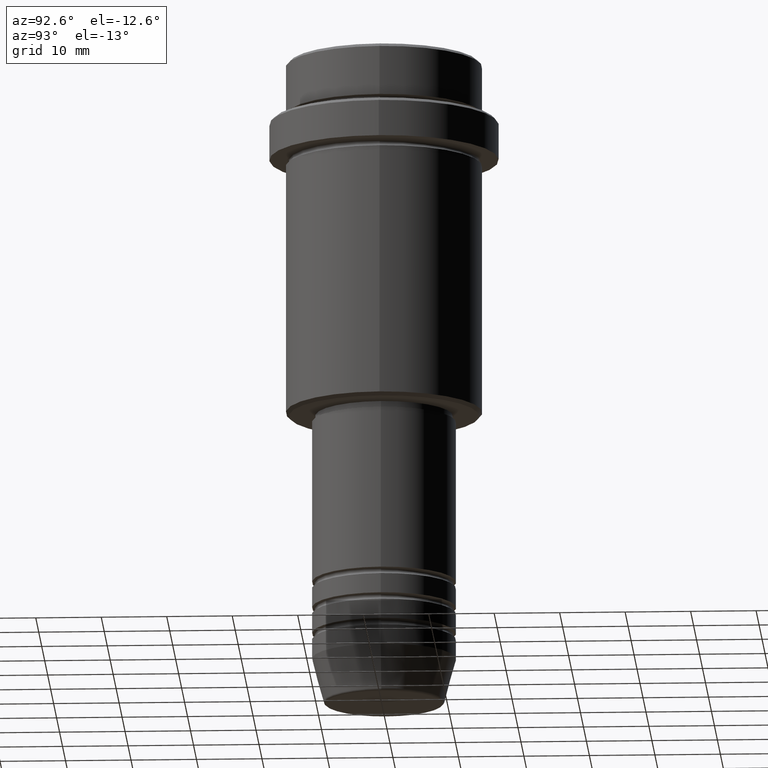
[diagram: clean part render]
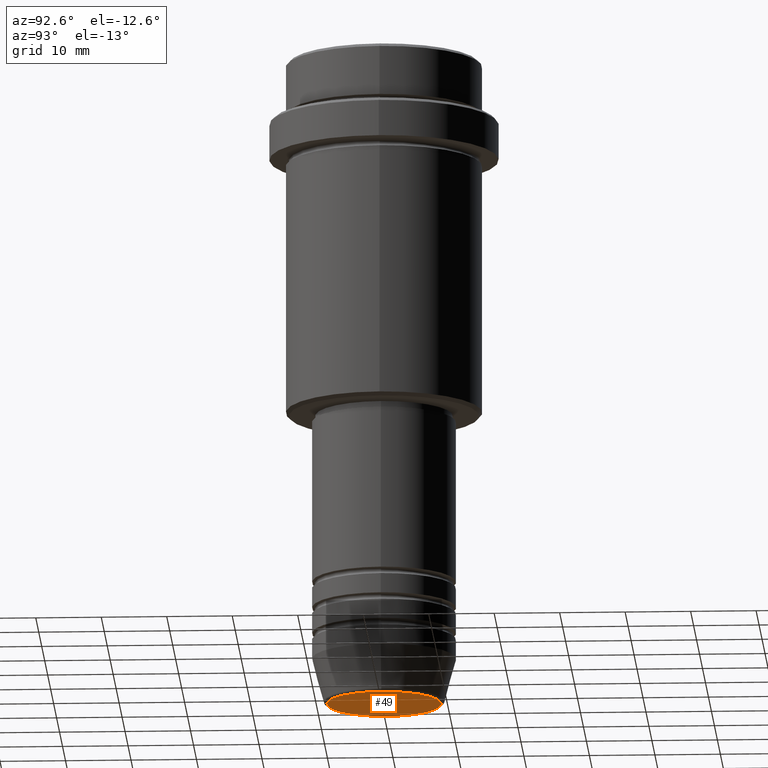
[diagram: same view with one face highlighted and labeled with its STEP entity id]
A machine part, auxiliary view. The second image highlights one B-rep face of the part: STEP entity #49.
In plain terms, the highlighted planar face has unit normal (0, -0, 1).
Its self-contained STEP definition (entity closure, byte-faithful):
#46 = VERTEX_POINT ( 'NONE', #663 ) ;
#49 = ADVANCED_FACE ( 'NONE', ( #656 ), #90, .F. ) ;
#90 = PLANE ( 'NONE',  #1188 ) ;
#153 = CARTESIAN_POINT ( 'NONE',  ( 8.740692158992652949, 0.000000000000000000, -100.0000000000000000 ) ) ;
#177 = VERTEX_POINT ( 'NONE', #153 ) ;
#220 = DIRECTION ( 'NONE',  ( 0.000000000000000000, 0.000000000000000000, -1.000000000000000000 ) ) ;
#227 = EDGE_LOOP ( 'NONE', ( #623, #1237 ) ) ;
#322 = DIRECTION ( 'NONE',  ( 0.000000000000000000, -0.000000000000000000, 1.000000000000000000 ) ) ;
#545 = CARTESIAN_POINT ( 'NONE',  ( 0.000000000000000000, 0.000000000000000000, -100.0000000000000000 ) ) ;
#549 = DIRECTION ( 'NONE',  ( 1.000000000000000000, 0.000000000000000000, 0.000000000000000000 ) ) ;
#605 = AXIS2_PLACEMENT_3D ( 'NONE', #545, #1084, #757 ) ;
#623 = ORIENTED_EDGE ( 'NONE', *, *, #664, .T. ) ;
#656 = FACE_OUTER_BOUND ( 'NONE', #227, .T. ) ;
#663 = CARTESIAN_POINT ( 'NONE',  ( -8.740692158992652949, 1.099999016768739259E-15, -100.0000000000000000 ) ) ;
#664 = EDGE_CURVE ( 'NONE', #177, #46, #1317, .T. ) ;
#675 = DIRECTION ( 'NONE',  ( 1.000000000000000000, 0.000000000000000000, 0.000000000000000000 ) ) ;
#713 = AXIS2_PLACEMENT_3D ( 'NONE', #1109, #220, #675 ) ;
#757 = DIRECTION ( 'NONE',  ( 1.000000000000000000, 0.000000000000000000, 0.000000000000000000 ) ) ;
#878 = CARTESIAN_POINT ( 'NONE',  ( 0.000000000000000000, 0.000000000000000000, -100.0000000000000000 ) ) ;
#916 = EDGE_CURVE ( 'NONE', #46, #177, #925, .T. ) ;
#925 = CIRCLE ( 'NONE', #605, 8.740692158992652949 ) ;
#1084 = DIRECTION ( 'NONE',  ( 0.000000000000000000, 0.000000000000000000, -1.000000000000000000 ) ) ;
#1109 = CARTESIAN_POINT ( 'NONE',  ( 0.000000000000000000, 0.000000000000000000, -100.0000000000000000 ) ) ;
#1188 = AXIS2_PLACEMENT_3D ( 'NONE', #878, #322, #549 ) ;
#1237 = ORIENTED_EDGE ( 'NONE', *, *, #916, .T. ) ;
#1317 = CIRCLE ( 'NONE', #713, 8.740692158992652949 ) ;